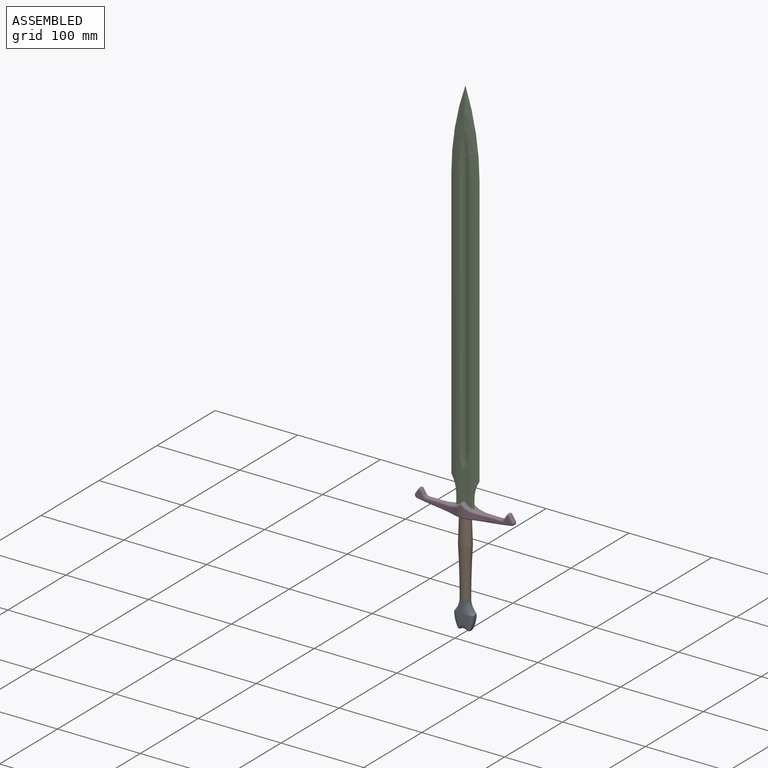
[diagram: assembled view]
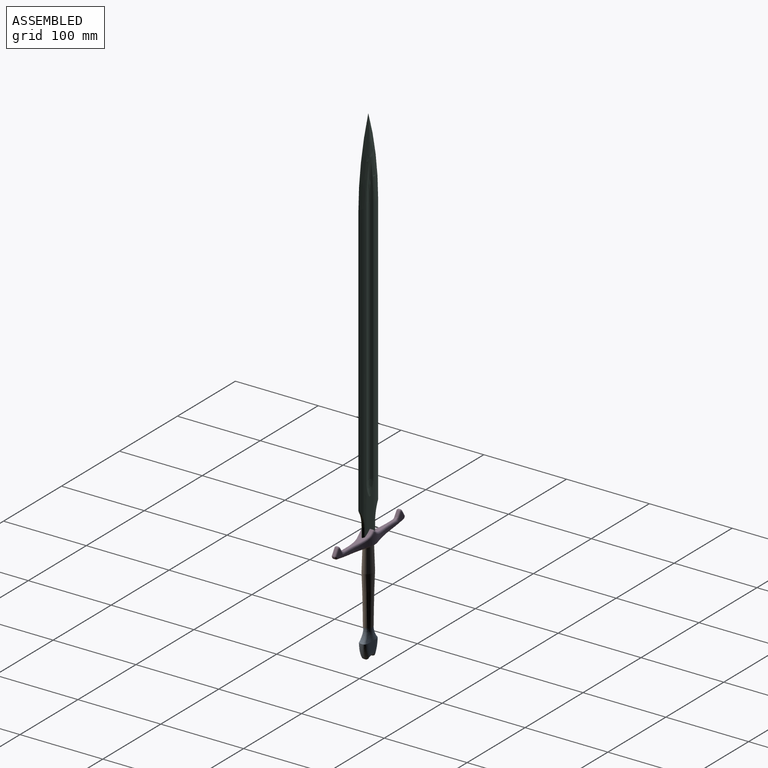
[diagram: assembled view, second angle]
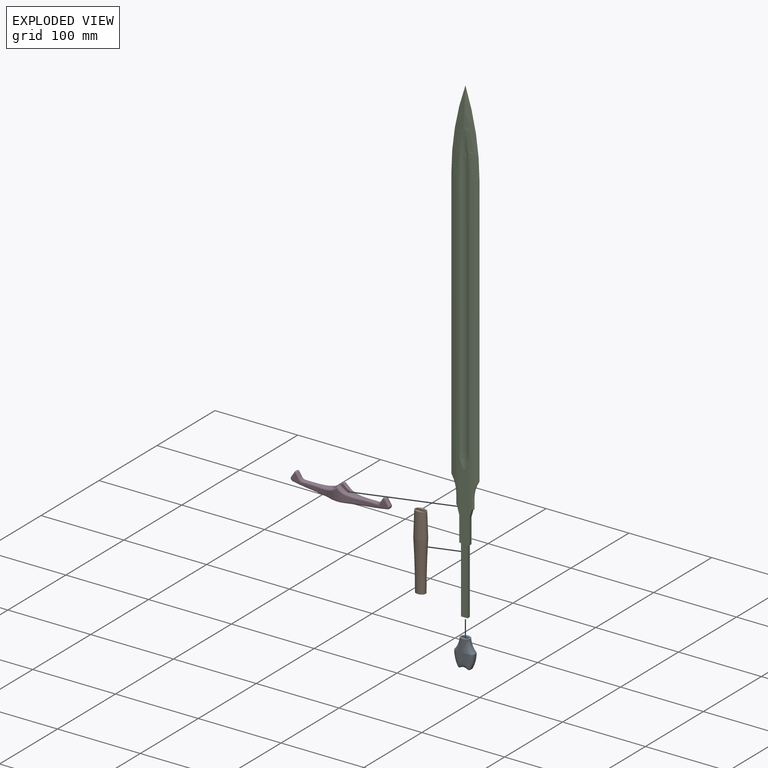
[diagram: exploded view]
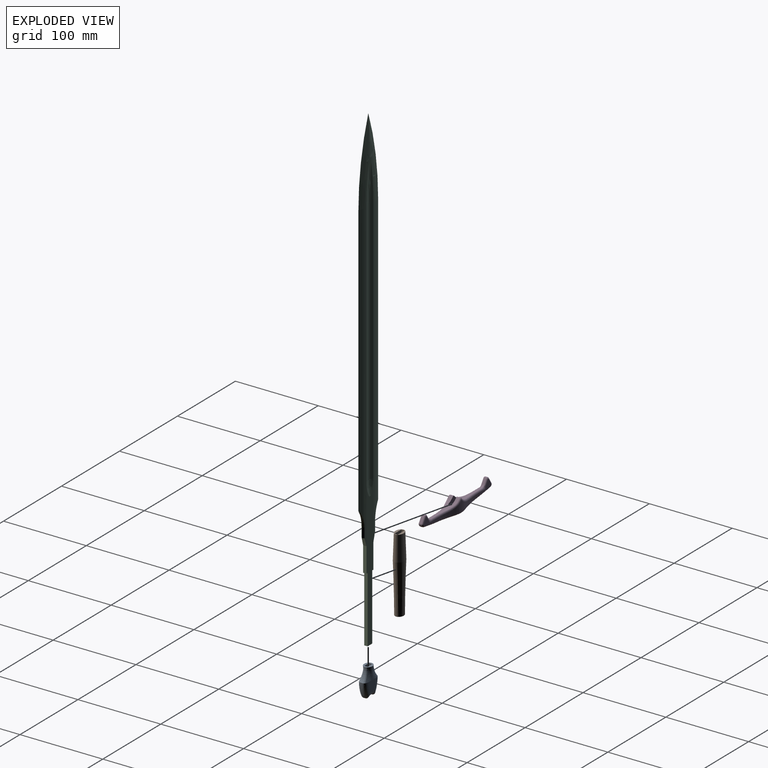
[diagram: exploded view, second angle]
ASSEMBLY  parts=4 mates=3
PART A: 15 faces, bbox 25.1x11.1x36.1 mm
  f0: plane 12.28x10.28mm, normal (0,0,1), area 62.2mm2, adj f1,f11,f12,f13,f14
  f1: bspline ~24x15mm, area 667.1mm2, adj f0,f2,f3,f4,f7
  f2: plane 11.37x11.03mm, normal (0,-1,0), area 89.2mm2, adj f1,f4,f5,f6,f7
  f3: plane 11.48x11.14mm, normal (0,1,0), area 89.2mm2, adj f1,f4,f5,f6,f7
  f4: bspline ~20x11.84mm, area 320.5mm2, adj f1,f2,f3,f8
  f5: bspline ~11.6x10mm, area 93mm2, adj f2,f3,f6,f9
  f6: bspline ~11.6x10mm, area 93mm2, adj f2,f3,f5,f8
  f7: bspline ~20x11.84mm, area 320.5mm2, adj f1,f2,f3,f9
  f8: bspline ~10x9.43mm, area 0mm2, adj f4,f6
  f9: bspline ~10x9.43mm, area 0mm2, adj f5,f7
  f10: plane 8x4mm, normal (0,0,1), area 32mm2, adj f11,f12,f13,f14
  f11: plane 20x4mm, normal (-1,0,0), area 80mm2, adj f0,f10,f13,f14
  f12: plane 20x4mm, normal (1,0,0), area 80mm2, adj f0,f10,f13,f14
  f13: plane 20x8mm, normal (0,-1,0), area 160mm2, adj f0,f10,f11,f12
  f14: plane 20x8mm, normal (0,1,0), area 160mm2, adj f0,f10,f11,f12
PART B: 12 faces, bbox 16x12x90 mm
  f0: plane 12x10mm, normal (0,0,-1), area 62.2mm2, adj f3,f4,f5,f6,f7
  f1: plane 14x10mm, normal (0,0,1), area 61.9mm2, adj f2,f6,f7,f8,f11
  f2: bspline ~30x16mm, area 1233.1mm2, adj f1,f3
  f3: bspline ~60x16mm, area 2284mm2, adj f0,f2
  f4: plane 60x4mm, normal (1,0,0), area 240mm2, adj f0,f6,f7,f9
  f5: plane 60x4mm, normal (-1,0,0), area 240mm2, adj f0,f6,f7,f10
  f6: plane 90x12mm, normal (0,-1,0), area 840mm2, adj f0,f1,f4,f5,f8,f9,f10,f11
  f7: plane 90x12mm, normal (0,1,0), area 840mm2, adj f0,f1,f4,f5,f8,f9,f10,f11
  f8: plane 30x4mm, normal (1,0,0), area 120mm2, adj f1,f6,f7,f9
  f9: plane 4x2mm, normal (0,0,1), area 8mm2, adj f4,f6,f7,f8
  f10: plane 4x2mm, normal (0,0,1), area 8mm2, adj f5,f6,f7,f11
  f11: plane 30x4mm, normal (-1,0,0), area 120mm2, adj f1,f6,f7,f10
PART C: 55 faces, bbox 584.1x17.5x64 mm
  f0: plane 3.54x2mm, normal (-1,0,0), area 3.9mm2, adj f1,f7,f14,f17,f24
  f1: plane 10.02x4mm, normal (-0.29,0,0.96), area 39.8mm2, adj f0,f2,f14,f24
  f2: plane 30x3.98mm, normal (0,0,1), area 119.5mm2, adj f1,f3,f14,f24
  f3: plane 4x2mm, normal (-1,0,0), area 8mm2, adj f2,f4,f6,f14,f16,f24
  f4: plane 80x4mm, normal (0,0,1), area 320mm2, adj f3,f5,f6,f16
  f5: plane 8x4mm, normal (-1,0,0), area 32mm2, adj f4,f6,f16,f30
  f6: plane 177x14.68mm, normal (0,-1,0), area 1547.6mm2, adj f3,f4,f5,f11,f14,f29,f30,f35
  f7: plane 11.61x1.74mm, normal (0,-0.71,0.71), area 28.5mm2, adj f0,f8,f14,f17
  f8: cone r=36.33mm half-angle=45deg, axis (0,-1,0), area 34.6mm2, adj f7,f9,f14,f18
  f9: plane 334.42x4.57mm, normal (0,-0.97,0.24), area 1506.7mm2, adj f8,f10,f14,f19
  f10: cone r=294.62mm half-angle=76deg, axis (0,1,0), area 429.8mm2, adj f9,f15,f20,f34
  f11: cone r=30.33mm half-angle=76deg, axis (0,-1,0), area 29.9mm2, adj f6,f12,f14,f54
  f12: plane 300x3.55mm, normal (0,-0.97,-0.24), area 1096.3mm2, adj f11,f13,f14,f53
  f13: cone r=285.62mm half-angle=76deg, axis (0,-1,0), area 83.2mm2, adj f12,f15,f52
  f14: cylinder r=30mm len=400mm, axis (-1,0,0), area 2414.3mm2, adj f0,f1,f2,f3,f6,f7,f8,f9
  f15: torus R=290.92mm, axis (0,-1,0), area 487.4mm2, adj f10,f13,f14,f39,f52
  f16: plane 177x14.68mm, normal (0,1,0), area 1547.6mm2, adj f3,f4,f5,f21,f24,f29,f30,f44
  f17: plane 11.61x1.74mm, normal (0,0.71,0.71), area 28.5mm2, adj f0,f7,f18,f24
  f18: cone r=36.33mm half-angle=45deg, axis (0,1,0), area 34.6mm2, adj f8,f17,f19,f24
  f19: plane 334.42x4.57mm, normal (0,0.97,0.24), area 1506.7mm2, adj f9,f18,f20,f24
  f20: cone r=294.62mm half-angle=76deg, axis (0,-1,0), area 429.8mm2, adj f10,f19,f25,f43
  f21: cone r=30.33mm half-angle=76deg, axis (0,1,0), area 29.9mm2, adj f16,f22,f24,f51
  f22: plane 300x3.55mm, normal (0,0.97,-0.24), area 1096.3mm2, adj f21,f23,f24,f50
  f23: cone r=285.62mm half-angle=76deg, axis (0,1,0), area 83.2mm2, adj f22,f25,f49
  f24: cylinder r=30mm len=400mm, axis (-1,0,0), area 2414.3mm2, adj f0,f1,f2,f3,f16,f17,f18,f19
  f25: torus R=290.92mm, axis (0,1,0), area 487.4mm2, adj f20,f23,f24,f48,f49
  f26: plane 3.54x2mm, normal (-1,0,0), area 3.9mm2, adj f27,f31,f38,f40,f47
  f27: plane 10.02x4mm, normal (-0.29,0,-0.96), area 39.8mm2, adj f26,f28,f38,f47
  f28: plane 30x3.98mm, normal (0,0,-1), area 119.5mm2, adj f27,f29,f38,f47
  f29: plane 4x2mm, normal (-1,0,0), area 8mm2, adj f6,f16,f28,f30,f38,f47
  f30: plane 80x4mm, normal (0,0,-1), area 320mm2, adj f5,f6,f16,f29
  f31: plane 11.61x1.74mm, normal (0,-0.71,-0.71), area 28.5mm2, adj f26,f32,f38,f40
  f32: cone r=36.33mm half-angle=45deg, axis (0,-1,0), area 34.6mm2, adj f31,f33,f38,f41
  f33: plane 334.42x4.57mm, normal (0,-0.97,-0.24), area 1506.7mm2, adj f32,f34,f38,f42
  f34: cone r=294.62mm half-angle=76deg, axis (0,1,0), area 429.8mm2, adj f10,f33,f39,f43
  f35: cone r=30.33mm half-angle=76deg, axis (0,-1,0), area 29.9mm2, adj f6,f36,f38,f54
  f36: plane 300x3.55mm, normal (0,-0.97,0.24), area 1096.3mm2, adj f35,f37,f38,f53
  f37: cone r=285.62mm half-angle=76deg, axis (0,-1,0), area 83.2mm2, adj f36,f39,f52
  f38: cylinder r=30mm len=400mm, axis (-1,0,0), area 2414.3mm2, adj f6,f26,f27,f28,f29,f31,f32,f33
  f39: torus R=290.92mm, axis (0,-1,0), area 487.4mm2, adj f15,f34,f37,f38,f52
  f40: plane 11.61x1.74mm, normal (0,0.71,-0.71), area 28.5mm2, adj f26,f31,f41,f47
  f41: cone r=36.33mm half-angle=45deg, axis (0,1,0), area 34.6mm2, adj f32,f40,f42,f47
  f42: plane 334.42x4.57mm, normal (0,0.97,-0.24), area 1506.7mm2, adj f33,f41,f43,f47
  f43: cone r=294.62mm half-angle=76deg, axis (0,-1,0), area 429.8mm2, adj f20,f34,f42,f48
  f44: cone r=30.33mm half-angle=76deg, axis (0,1,0), area 29.9mm2, adj f16,f45,f47,f51
  f45: plane 300x3.55mm, normal (0,0.97,0.24), area 1096.3mm2, adj f44,f46,f47,f50
  f46: cone r=285.62mm half-angle=76deg, axis (0,1,0), area 83.2mm2, adj f45,f48,f49
  f47: cylinder r=30mm len=400mm, axis (-1,0,0), area 2414.3mm2, adj f16,f26,f27,f28,f29,f40,f41,f42
  f48: torus R=290.92mm, axis (0,1,0), area 487.4mm2, adj f25,f43,f46,f47,f49
  f49: bspline ~75.46x4.85mm, area 239.2mm2, adj f23,f25,f46,f48,f50
  f50: cylinder r=10mm len=300mm, axis (-1,0,0), area 1469.9mm2, adj f22,f45,f49,f51
  f51: bspline ~24.62x4.86mm, area 76.8mm2, adj f16,f21,f44,f50
  f52: bspline ~75.46x4.85mm, area 239.2mm2, adj f13,f15,f37,f39,f53
  f53: cylinder r=10mm len=300mm, axis (-1,0,0), area 1469.9mm2, adj f12,f36,f52,f54
  f54: bspline ~24.62x4.86mm, area 76.8mm2, adj f6,f11,f35,f53
PART D: 91 faces, bbox 120.1x15.7x17.4 mm
  f0: extruded ~24.36x11.52mm, area 149.2mm2, adj f8,f21,f22,f29,f30,f43,f48,f52
  f1: extruded ~24.36x11.52mm, area 149.2mm2, adj f9,f21,f22,f27,f28,f34,f38,f42
  f2: cylinder r=327.4mm len=114mm, axis (0,1,0), area 504.7mm2, adj f4,f5,f19,f20,f21,f22,f49,f54
  f3: plane 6.94x4.51mm, normal (-0.84,0,0.54), area 16.5mm2, adj f39,f40,f50,f51
  f4: cylinder r=3.66mm len=3.14mm, axis (0,1,0), area 9.3mm2, adj f2,f44,f50,f59
  f5: cylinder r=3.66mm len=3.14mm, axis (0,1,0), area 9.3mm2, adj f2,f71,f77,f80
  f6: plane 6.94x4.51mm, normal (0.84,0,0.54), area 16.5mm2, adj f69,f70,f76,f77
  f7: plane 5.15x3.34mm, normal (-0.84,0,0.54), area 12.3mm2, adj f61,f68,f69,f82
  f8: plane 19.29x2.94mm, normal (0,0,1), area 41.6mm2, adj f0,f53,f57,f60,f64,f82
  f9: plane 19.29x2.94mm, normal (0,0,1), area 41.6mm2, adj f1,f31,f32,f36,f37,f85
  f10: plane 5.15x3.34mm, normal (0.84,0,0.54), area 12.3mm2, adj f33,f40,f41,f85
  f11: plane 23.01x11.44mm, normal (0,1,0), area 80.7mm2, adj f12,f31,f33,f39,f44,f49
  f12: extruded ~27.16x7.41mm, area 130.3mm2, adj f11,f26,f32,f34,f54
  f13: extruded ~27.16x7.41mm, area 130.3mm2, adj f14,f26,f48,f53,f62
  f14: plane 23.01x11.44mm, normal (0,1,0), area 80.7mm2, adj f13,f57,f61,f66,f70,f71
  f15: plane 23.01x11.44mm, normal (0,-1,0), area 80.7mm2, adj f16,f64,f68,f76,f78,f80
  f16: extruded ~27.16x7.41mm, area 130.3mm2, adj f15,f25,f56,f60,f75
  f17: extruded ~27.16x7.41mm, area 130.3mm2, adj f18,f25,f37,f42,f67
  f18: plane 23.01x11.44mm, normal (0,-1,0), area 80.7mm2, adj f17,f36,f41,f51,f59,f63
  f19: plane 9.94x4mm, normal (-0.96,0,0.29), area 41.5mm2, adj f2,f21,f22,f23
  f20: plane 9.94x4mm, normal (0.96,0,0.29), area 41.5mm2, adj f2,f21,f22,f24
  f21: plane 18.56x16.77mm, normal (0,-1,0), area 213.5mm2, adj f0,f1,f2,f19,f20,f28,f30,f89
  f22: plane 18.56x16.77mm, normal (0,1,0), area 213.5mm2, adj f0,f1,f2,f19,f20,f27,f29,f87
  f23: plane 4x2mm, normal (0,0,1), area 4mm2, adj f19,f29,f30
  f24: plane 4x2mm, normal (0,0,1), area 4mm2, adj f20,f27,f28
  f25: cylinder r=30mm len=15.69mm, axis (0,0,-1), area 156.6mm2, adj f16,f17,f47,f52,f72
  f26: cylinder r=30mm len=15.69mm, axis (0,0,-1), area 156.6mm2, adj f12,f13,f38,f43,f58
  f27: plane 2.08x2.08mm, normal (0.71,0.71,0), area 1.9mm2, adj f1,f22,f24,f28
  f28: plane 2.08x2.08mm, normal (0.71,-0.71,0), area 1.9mm2, adj f1,f21,f24,f27
  f29: plane 2.08x2.08mm, normal (-0.71,0.71,0), area 1.9mm2, adj f0,f22,f23,f30
  f30: plane 2.08x2.08mm, normal (-0.71,-0.71,0), area 1.9mm2, adj f0,f21,f23,f29
  f31: cylinder r=2mm len=13.09mm, axis (-1,0,0), area 35.1mm2, adj f9,f11,f32,f84
  f32: bspline ~21.46x2.89mm, area 31.1mm2, adj f9,f12,f31,f34
  f33: cylinder r=2mm len=9.42mm, axis (-0.54,0,0.84), area 25.2mm2, adj f10,f11,f35,f84
  f34: bspline ~24.97x6.31mm, area 54.2mm2, adj f1,f12,f32,f38
  f35: sphere r=2mm, area 9mm2, adj f33,f39,f40
  f36: cylinder r=2mm len=13.09mm, axis (1,0,0), area 35.1mm2, adj f9,f18,f37,f86
  f37: bspline ~21.46x2.89mm, area 31.1mm2, adj f9,f17,f36,f42
  f38: bspline ~10.15x7.6mm, area 28mm2, adj f1,f26,f34,f90
  f39: cylinder r=2mm len=8.03mm, axis (-0.54,0,-0.84), area 26mm2, adj f3,f11,f35,f45
  f40: cylinder r=2mm len=3.35mm, axis (0,1,0), area 8mm2, adj f3,f10,f35,f46
  f41: cylinder r=2mm len=9.42mm, axis (0.54,0,-0.84), area 25.2mm2, adj f10,f18,f46,f86
  f42: bspline ~24.97x6.31mm, area 54.2mm2, adj f1,f17,f37,f47
  f43: bspline ~12.04x8.21mm, area 28mm2, adj f0,f26,f48,f90
  f44: torus R=1.66mm, axis (0,1,0), area 11.7mm2, adj f4,f11,f45,f49
  f45: sphere r=2mm, area 2.2mm2, adj f39,f44,f50
  f46: sphere r=2mm, area 9mm2, adj f40,f41,f51
  f47: bspline ~12.04x8.21mm, area 28mm2, adj f1,f25,f42,f88
  f48: bspline ~24.97x6.31mm, area 54.2mm2, adj f0,f13,f43,f53
  f49: torus R=325.4mm, axis (0,1,0), area 69mm2, adj f2,f11,f44,f54
  f50: cylinder r=2mm len=2mm, axis (0,1,0), area 2.8mm2, adj f3,f4,f45,f55
  f51: cylinder r=2mm len=8.03mm, axis (0.54,0,0.84), area 26mm2, adj f3,f18,f46,f55
  f52: bspline ~10.15x7.6mm, area 28mm2, adj f0,f25,f56,f88
  f53: bspline ~21.46x2.89mm, area 31.1mm2, adj f8,f13,f48,f57
  f54: bspline ~35.38x6.75mm, area 87.2mm2, adj f2,f12,f49,f58
  f55: sphere r=2mm, area 2.2mm2, adj f50,f51,f59
  f56: bspline ~24.97x6.31mm, area 54.2mm2, adj f0,f16,f52,f60
  f57: cylinder r=2mm len=13.09mm, axis (-1,0,0), area 35.1mm2, adj f8,f14,f53,f83
  f58: bspline ~17.42x3.19mm, area 48.8mm2, adj f2,f26,f54,f62
  f59: torus R=1.66mm, axis (0,1,0), area 11.7mm2, adj f4,f18,f55,f63
  f60: bspline ~21.46x2.89mm, area 31.1mm2, adj f8,f16,f56,f64
  f61: cylinder r=2mm len=9.42mm, axis (-0.54,0,-0.84), area 25.2mm2, adj f7,f14,f65,f83
  f62: bspline ~35.38x6.75mm, area 87.2mm2, adj f2,f13,f58,f66
  f63: torus R=325.4mm, axis (0,1,0), area 69mm2, adj f2,f18,f59,f67
  f64: cylinder r=2mm len=13.09mm, axis (1,0,0), area 35.1mm2, adj f8,f15,f60,f81
  f65: sphere r=2mm, area 9mm2, adj f61,f69,f70
  f66: torus R=325.4mm, axis (0,-1,0), area 69mm2, adj f2,f14,f62,f71
  f67: bspline ~35.38x6.75mm, area 87.2mm2, adj f2,f17,f63,f72
  f68: cylinder r=2mm len=9.42mm, axis (0.54,0,0.84), area 25.2mm2, adj f7,f15,f73,f81
  f69: cylinder r=2mm len=3.35mm, axis (0,1,0), area 8mm2, adj f6,f7,f65,f73
  f70: cylinder r=2mm len=8.03mm, axis (-0.54,0,0.84), area 26mm2, adj f6,f14,f65,f74
  f71: torus R=1.66mm, axis (0,-1,0), area 11.7mm2, adj f5,f14,f66,f74
  f72: bspline ~17.42x3.19mm, area 48.8mm2, adj f2,f25,f67,f75
  f73: sphere r=2mm, area 8.5mm2, adj f68,f69,f76
  f74: sphere r=2mm, area 2.2mm2, adj f70,f71,f77
  f75: bspline ~35.38x6.75mm, area 87.2mm2, adj f2,f16,f72,f78
  f76: cylinder r=2mm len=8.03mm, axis (0.54,0,-0.84), area 26mm2, adj f6,f15,f73,f79
  f77: cylinder r=2mm len=2mm, axis (0,1,0), area 2.8mm2, adj f5,f6,f74,f79
  f78: torus R=325.4mm, axis (0,-1,0), area 69mm2, adj f2,f15,f75,f80
  f79: sphere r=2mm, area 2.8mm2, adj f76,f77,f80
  f80: torus R=1.66mm, axis (0,-1,0), area 11.7mm2, adj f5,f15,f78,f79
  f81: bspline ~4.28x4.19mm, area 6.3mm2, adj f64,f68,f82
  f82: cylinder r=5mm len=4.19mm, axis (0,-1,0), area 9.9mm2, adj f7,f8,f81,f83
  f83: bspline ~4.28x4.19mm, area 6.3mm2, adj f57,f61,f82
  f84: bspline ~4.28x4.19mm, area 6.3mm2, adj f31,f33,f85
  f85: cylinder r=5mm len=4.19mm, axis (0,-1,0), area 9.9mm2, adj f9,f10,f84,f86
  f86: bspline ~4.28x4.19mm, area 6.3mm2, adj f36,f41,f85
  f87: cylinder r=1mm len=3.76mm, axis (0,1,0), area 5.2mm2, adj f0,f1,f22,f88
  f88: bspline ~2.63x2.33mm, area 2mm2, adj f47,f52,f87
  f89: cylinder r=1mm len=3.76mm, axis (0,1,0), area 5.2mm2, adj f0,f1,f21,f90
  f90: bspline ~2.63x2.33mm, area 2mm2, adj f38,f43,f89
PLACE A t=(-2.56,-21.09,-126.36)mm
PLACE B t=(-2.56,-21.09,-21.36)mm
PLACE C rot(axis=(0,-1,0),90deg) t=(-2.56,-21.09,-131.36)mm fixed
PLACE D t=(-2.53,-21.09,-16.48)mm
MATE fastened A.f10 <-> C.f5  axis (0,0,1) through (-2.56,-21.09,-131.36)mm
MATE fastened B.f8 <-> C.f2  axis (1,0,0) through (-8.56,-21.09,-36.36)mm
MATE fastened C.f1 <-> D.f20  axis (-0.96,0,-0.29) through (-10.04,-21.09,-16.45)mm
